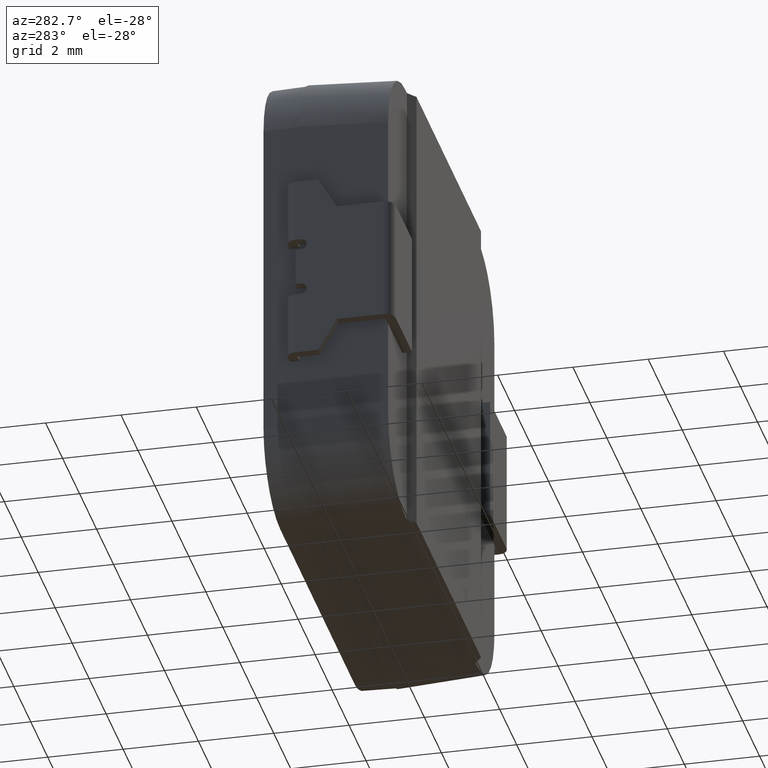
[diagram: clean part render]
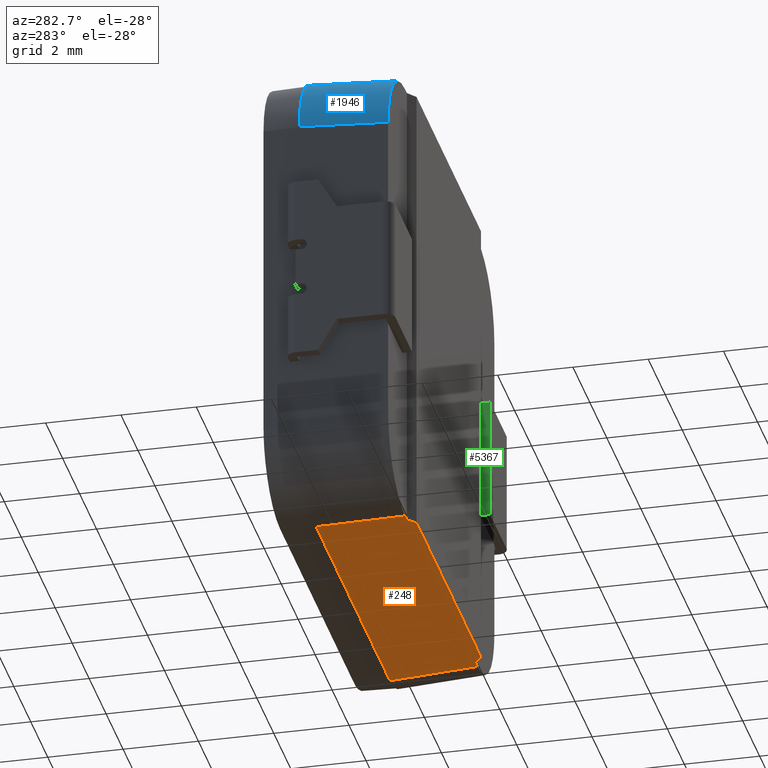
[diagram: same view with three faces highlighted in distinct colors, each labeled with its STEP entity id]
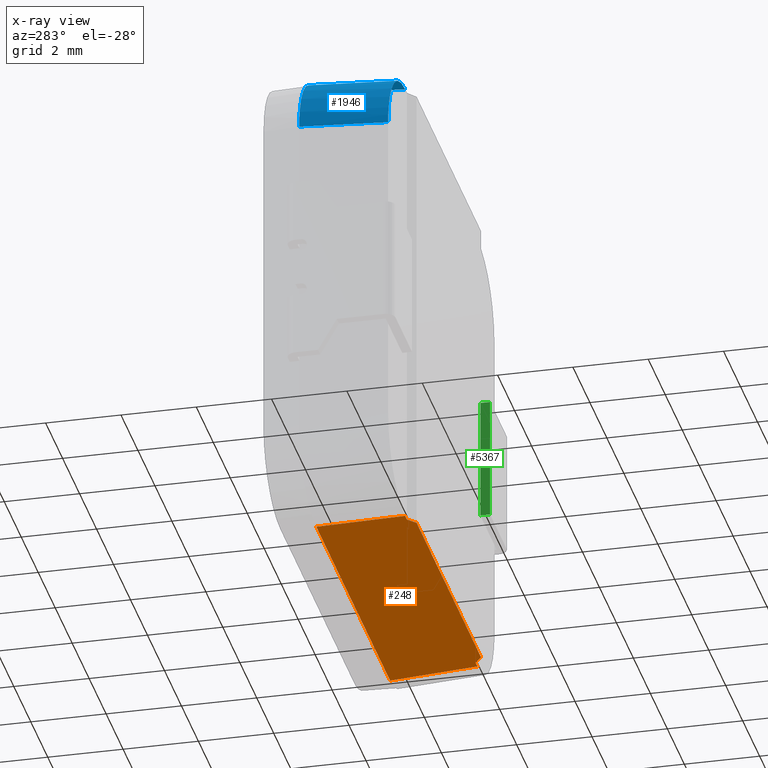
[diagram: x-ray of the same camera — body ghosted, the three highlighted faces saturated]
A machine part, auxiliary view with three faces highlighted in distinct colors.
The next image is the same camera in x-ray (body ghosted, the three faces saturated) — at least one of them is partly hidden behind the body in this view.
Their STEP definitions:

[orange] entity #248 — the highlighted planar face has unit normal (-0, -0.0401, -0.9992).
#28 = VECTOR ( 'NONE', #2300, 1000.000000000000000 ) ;
#121 = CARTESIAN_POINT ( 'NONE',  ( 3.800000000000000711, 9.307315673519885459E-16, -6.247983061623334500 ) ) ;
#126 = VECTOR ( 'NONE', #5061, 1000.000000000000000 ) ;
#248 = ADVANCED_FACE ( 'NONE', ( #2731 ), #3258, .T. ) ;
#269 = EDGE_CURVE ( 'NONE', #5351, #5845, #4841, .T. ) ;
#498 = LINE ( 'NONE', #3065, #4944 ) ;
#686 = EDGE_CURVE ( 'NONE', #5300, #5351, #498, .T. ) ;
#696 = VECTOR ( 'NONE', #1530, 1000.000000000000227 ) ;
#730 = LINE ( 'NONE', #3482, #4861 ) ;
#774 = CARTESIAN_POINT ( 'NONE',  ( -6.350000000000000533, 0.2000000000000000944, -6.256015891416768504 ) ) ;
#831 = DIRECTION ( 'NONE',  ( 0.0000000000000000000, 0.9991943951144459657, -0.04013179253255981516 ) ) ;
#992 = CARTESIAN_POINT ( 'NONE',  ( -1.144888323976440470, -3.955910659181152145, -6.089097276607078335 ) ) ;
#1013 = DIRECTION ( 'NONE',  ( -1.000000000000000000, -3.888986053480611330E-16, 2.888045808847591685E-16 ) ) ;
#1072 = EDGE_CURVE ( 'NONE', #2872, #6143, #1643, .T. ) ;
#1143 = CARTESIAN_POINT ( 'NONE',  ( -4.351611209771109046, 2.540000000000000036, -6.349999999999998757 ) ) ;
#1460 = EDGE_CURVE ( 'NONE', #4351, #5300, #2756, .T. ) ;
#1530 = DIRECTION ( 'NONE',  ( -0.7806231370511286238, -0.6244985096409028102, 0.02508245117100675603 ) ) ;
#1627 = DIRECTION ( 'NONE',  ( -1.000000000000000000, -0.0000000000000000000, 2.731847993664264205E-16 ) ) ;
#1643 = LINE ( 'NONE', #2667, #126 ) ;
#1699 = VERTEX_POINT ( 'NONE', #6102 ) ;
#1841 = EDGE_CURVE ( 'NONE', #2872, #1699, #3788, .T. ) ;
#1933 = ORIENTED_EDGE ( 'NONE', *, *, #4963, .T. ) ;
#1937 = EDGE_CURVE ( 'NONE', #1699, #2364, #4343, .T. ) ;
#1944 = EDGE_LOOP ( 'NONE', ( #2868, #4597, #6004, #3887, #5430, #5160, #2140, #1933 ) ) ;
#1960 = EDGE_CURVE ( 'NONE', #2364, #4351, #5810, .T. ) ;
#2140 = ORIENTED_EDGE ( 'NONE', *, *, #269, .T. ) ;
#2300 = DIRECTION ( 'NONE',  ( -1.000000000000000000, 1.532024808946907635E-16, 2.670315521016287325E-16 ) ) ;
#2364 = VERTEX_POINT ( 'NONE', #4431 ) ;
#2667 = CARTESIAN_POINT ( 'NONE',  ( -6.350000000000000533, 2.540000000000000036, -6.349999999999997868 ) ) ;
#2731 = FACE_OUTER_BOUND ( 'NONE', #1944, .T. ) ;
#2756 = LINE ( 'NONE', #4507, #5695 ) ;
#2868 = ORIENTED_EDGE ( 'NONE', *, *, #1072, .F. ) ;
#2872 = VERTEX_POINT ( 'NONE', #4154 ) ;
#2920 = VECTOR ( 'NONE', #1013, 1000.000000000000000 ) ;
#3011 = CARTESIAN_POINT ( 'NONE',  ( -4.049999999999998934, 0.1999999999999992339, -6.256015891416769392 ) ) ;
#3065 = CARTESIAN_POINT ( 'NONE',  ( -6.594142198687785950, 2.235313758950226326, -6.337762536426221338 ) ) ;
#3209 = DIRECTION ( 'NONE',  ( -2.729647203573977622E-16, -0.04013179253255982210, -0.9991943951144460767 ) ) ;
#3258 = PLANE ( 'NONE',  #4499 ) ;
#3274 = CARTESIAN_POINT ( 'NONE',  ( -4.257627101187881458, 0.1999999999999997613, -6.256015891416769392 ) ) ;
#3337 = CARTESIAN_POINT ( 'NONE',  ( 4.334403328898673635, 2.111561172963322353, -6.332792119127571340 ) ) ;
#3482 = CARTESIAN_POINT ( 'NONE',  ( -4.354824561066068078, 2.620005462024930232, -6.353213351294956901 ) ) ;
#3757 = DIRECTION ( 'NONE',  ( -0.04009951417164845516, -0.9983907340948209308, 0.04009951417164848292 ) ) ;
#3788 = LINE ( 'NONE', #3337, #4742 ) ;
#3828 = CARTESIAN_POINT ( 'NONE',  ( -3.799999999999999822, 0.0000000000000000000, -6.247983061623331835 ) ) ;
#3887 = ORIENTED_EDGE ( 'NONE', *, *, #1960, .T. ) ;
#4154 = CARTESIAN_POINT ( 'NONE',  ( 4.351611209771102828, 2.540000000000000036, -6.350000000000000533 ) ) ;
#4343 = LINE ( 'NONE', #5356, #2920 ) ;
#4351 = VERTEX_POINT ( 'NONE', #121 ) ;
#4431 = CARTESIAN_POINT ( 'NONE',  ( 4.050000000000000711, 0.2000000000000006495, -6.256015891416772057 ) ) ;
#4499 = AXIS2_PLACEMENT_3D ( 'NONE', #6192, #3209, #831 ) ;
#4507 = CARTESIAN_POINT ( 'NONE',  ( -6.350000000000000533, 0.0000000000000000000, -6.247983061623330947 ) ) ;
#4597 = ORIENTED_EDGE ( 'NONE', *, *, #1841, .T. ) ;
#4742 = VECTOR ( 'NONE', #3757, 1000.000000000000114 ) ;
#4841 = LINE ( 'NONE', #774, #28 ) ;
#4861 = VECTOR ( 'NONE', #6006, 1000.000000000000114 ) ;
#4944 = VECTOR ( 'NONE', #4955, 1000.000000000000114 ) ;
#4955 = DIRECTION ( 'NONE',  ( -0.7806231370511289569, 0.6244985096409025882, -0.02508245117100632235 ) ) ;
#4963 = EDGE_CURVE ( 'NONE', #5845, #6143, #730, .T. ) ;
#5061 = DIRECTION ( 'NONE',  ( -1.000000000000000000, 0.0000000000000000000, 2.731847993664264205E-16 ) ) ;
#5160 = ORIENTED_EDGE ( 'NONE', *, *, #686, .T. ) ;
#5300 = VERTEX_POINT ( 'NONE', #3828 ) ;
#5351 = VERTEX_POINT ( 'NONE', #3011 ) ;
#5356 = CARTESIAN_POINT ( 'NONE',  ( -6.349999999999999645, 0.1999999999999966249, -6.256015891416768504 ) ) ;
#5430 = ORIENTED_EDGE ( 'NONE', *, *, #1460, .T. ) ;
#5695 = VECTOR ( 'NONE', #1627, 1000.000000000000000 ) ;
#5810 = LINE ( 'NONE', #992, #696 ) ;
#5845 = VERTEX_POINT ( 'NONE', #3274 ) ;
#6004 = ORIENTED_EDGE ( 'NONE', *, *, #1937, .T. ) ;
#6006 = DIRECTION ( 'NONE',  ( -0.04009951417164847598, 0.9983907340948209308, -0.04009951417164846210 ) ) ;
#6102 = CARTESIAN_POINT ( 'NONE',  ( 4.257627101187869023, 0.2000000000000007327, -6.256015891416772057 ) ) ;
#6143 = VERTEX_POINT ( 'NONE', #1143 ) ;
#6192 = CARTESIAN_POINT ( 'NONE',  ( -6.350000000000000533, 2.540000000000000036, -6.349999999999997868 ) ) ;

[blue] entity #1946 — the highlighted cylindrical surface (partial cylindrical patch) has radius 2 mm, axis along (0.0401, -0.9984, -0.0401).
#218 = CARTESIAN_POINT ( 'NONE',  ( -6.350000000000000533, 2.540000000000000036, 4.351611209771104605 ) ) ;
#389 = VECTOR ( 'NONE', #2238, 1000.000000000000114 ) ;
#427 = CARTESIAN_POINT ( 'NONE',  ( -6.256015891416772057, 0.1999999999999999556, 5.428646283308216525 ) ) ;
#566 = CARTESIAN_POINT ( 'NONE',  ( -4.354824561066067190, 2.700269047090050112, 4.354824561066063637 ) ) ;
#671 = CARTESIAN_POINT ( 'NONE',  ( -6.350000000000000533, 2.540000000000000036, 5.522630391891446777 ) ) ;
#833 = CYLINDRICAL_SURFACE ( 'NONE', #1943, 2.000000000000000000 ) ;
#1173 = EDGE_CURVE ( 'NONE', #3013, #1629, #4314, .T. ) ;
#1359 = CARTESIAN_POINT ( 'NONE',  ( -4.257627101187879681, 0.1999999999999997613, 6.256015891416768504 ) ) ;
#1446 = ORIENTED_EDGE ( 'NONE', *, *, #3804, .F. ) ;
#1551 =( BOUNDED_CURVE ( )  B_SPLINE_CURVE ( 3, ( #4768, #3322, #427, #3798 ),
 .UNSPECIFIED., .F., .T. ) 
 B_SPLINE_CURVE_WITH_KNOTS ( ( 4, 4 ),
 ( 2.356999770926418769, 3.926185536253164798 ),
 .UNSPECIFIED. ) 
 CURVE ( )  GEOMETRIC_REPRESENTATION_ITEM ( )  RATIONAL_B_SPLINE_CURVE ( ( 1.000000000000000000, 0.8051173142143849271, 0.8051173142143849271, 1.000000000000000000 ) ) 
 REPRESENTATION_ITEM ( '' )  );
#1587 = CARTESIAN_POINT ( 'NONE',  ( -6.332792119127571340, 2.111561172963322353, 4.334403328898676300 ) ) ;
#1629 = VERTEX_POINT ( 'NONE', #2075 ) ;
#1713 = EDGE_CURVE ( 'NONE', #1629, #5993, #5058, .T. ) ;
#1943 = AXIS2_PLACEMENT_3D ( 'NONE', #566, #3469, #3939 ) ;
#1946 = ADVANCED_FACE ( 'NONE', ( #2857 ), #833, .T. ) ;
#2075 = CARTESIAN_POINT ( 'NONE',  ( -4.351611209771108157, 2.540000000000000036, 6.349999999999997868 ) ) ;
#2136 = VERTEX_POINT ( 'NONE', #6198 ) ;
#2238 = DIRECTION ( 'NONE',  ( 0.04009951417164847598, -0.9983907340948209308, -0.04009951417164847598 ) ) ;
#2606 = EDGE_CURVE ( 'NONE', #5993, #2136, #1551, .T. ) ;
#2790 = VECTOR ( 'NONE', #4392, 1000.000000000000114 ) ;
#2857 = FACE_OUTER_BOUND ( 'NONE', #4335, .T. ) ;
#2867 = CARTESIAN_POINT ( 'NONE',  ( -6.350000000000000533, 2.540000000000000036, 4.351611209771104605 ) ) ;
#3013 = VERTEX_POINT ( 'NONE', #2867 ) ;
#3322 = CARTESIAN_POINT ( 'NONE',  ( -5.428646283308221854, 0.1999999999999998446, 6.256015891416767616 ) ) ;
#3469 = DIRECTION ( 'NONE',  ( 0.04009951417164847598, -0.9983907340948210418, -0.04009951417164848292 ) ) ;
#3798 = CARTESIAN_POINT ( 'NONE',  ( -6.256015891416771169, 0.2000000000000000944, 4.257627101187874352 ) ) ;
#3804 = EDGE_CURVE ( 'NONE', #2136, #3013, #4227, .T. ) ;
#3939 = DIRECTION ( 'NONE',  ( 0.0000000000000000000, 0.04013179253255987067, -0.9991943951144460767 ) ) ;
#4031 = ORIENTED_EDGE ( 'NONE', *, *, #1713, .F. ) ;
#4227 = LINE ( 'NONE', #1587, #2790 ) ;
#4314 =( BOUNDED_CURVE ( )  B_SPLINE_CURVE ( 3, ( #218, #671, #5979, #5939 ),
 .UNSPECIFIED., .F., .F. ) 
 B_SPLINE_CURVE_WITH_KNOTS ( ( 4, 4 ),
 ( 2.356999770926420101, 3.926185536253165687 ),
 .UNSPECIFIED. ) 
 CURVE ( )  GEOMETRIC_REPRESENTATION_ITEM ( )  RATIONAL_B_SPLINE_CURVE ( ( 1.000000000000000000, 0.8051173142143849271, 0.8051173142143849271, 1.000000000000000000 ) ) 
 REPRESENTATION_ITEM ( '' )  );
#4335 = EDGE_LOOP ( 'NONE', ( #5126, #1446, #5517, #4031 ) ) ;
#4392 = DIRECTION ( 'NONE',  ( -0.04009951417164847598, 0.9983907340948209308, 0.04009951417164847598 ) ) ;
#4768 = CARTESIAN_POINT ( 'NONE',  ( -4.257627101187879681, 0.1999999999999997613, 6.256015891416768504 ) ) ;
#5058 = LINE ( 'NONE', #5130, #389 ) ;
#5126 = ORIENTED_EDGE ( 'NONE', *, *, #1173, .F. ) ;
#5130 = CARTESIAN_POINT ( 'NONE',  ( -4.354824561066067190, 2.620005462024930232, 6.353213351294956013 ) ) ;
#5517 = ORIENTED_EDGE ( 'NONE', *, *, #2606, .F. ) ;
#5939 = CARTESIAN_POINT ( 'NONE',  ( -4.351611209771108157, 2.540000000000000036, 6.349999999999997868 ) ) ;
#5979 = CARTESIAN_POINT ( 'NONE',  ( -5.522630391891451218, 2.540000000000000036, 6.349999999999996092 ) ) ;
#5993 = VERTEX_POINT ( 'NONE', #1359 ) ;
#6198 = CARTESIAN_POINT ( 'NONE',  ( -6.256015891416771169, 0.2000000000000000944, 4.257627101187874352 ) ) ;

[green] entity #5367 — the highlighted planar face has unit normal (-1, 0, 0).
#172 = LINE ( 'NONE', #5858, #5442 ) ;
#400 = VECTOR ( 'NONE', #1782, 1000.000000000000000 ) ;
#558 = VERTEX_POINT ( 'NONE', #4525 ) ;
#570 = DIRECTION ( 'NONE',  ( 0.0000000000000000000, 0.0000000000000000000, 1.000000000000000000 ) ) ;
#583 = VERTEX_POINT ( 'NONE', #2131 ) ;
#593 = CARTESIAN_POINT ( 'NONE',  ( 4.600000000000001421, -0.05999999999999972022, 2.500000000000000000 ) ) ;
#630 = CARTESIAN_POINT ( 'NONE',  ( 4.600000000000001421, -0.05999999999999972022, 2.500000000000000000 ) ) ;
#976 = LINE ( 'NONE', #5851, #5986 ) ;
#1370 = LINE ( 'NONE', #630, #5205 ) ;
#1524 = CARTESIAN_POINT ( 'NONE',  ( 4.600000000000001421, -0.05999999999999895695, -1.650000000000001021 ) ) ;
#1782 = DIRECTION ( 'NONE',  ( 0.0000000000000000000, -1.000000000000000000, -1.445602896647339903E-16 ) ) ;
#1831 = AXIS2_PLACEMENT_3D ( 'NONE', #593, #5877, #570 ) ;
#1950 = ORIENTED_EDGE ( 'NONE', *, *, #6181, .F. ) ;
#2131 = CARTESIAN_POINT ( 'NONE',  ( 4.600000000000001421, -0.05999999999999936634, 1.649999999999998801 ) ) ;
#2503 = LINE ( 'NONE', #4191, #400 ) ;
#2633 = CARTESIAN_POINT ( 'NONE',  ( 4.600000000000001421, 0.2000000000000003164, -1.650000000000000799 ) ) ;
#3160 = EDGE_CURVE ( 'NONE', #558, #4393, #172, .T. ) ;
#3291 = ORIENTED_EDGE ( 'NONE', *, *, #3160, .T. ) ;
#3411 = ORIENTED_EDGE ( 'NONE', *, *, #3440, .T. ) ;
#3440 = EDGE_CURVE ( 'NONE', #583, #558, #976, .T. ) ;
#3452 = VERTEX_POINT ( 'NONE', #1524 ) ;
#3731 = EDGE_LOOP ( 'NONE', ( #1950, #3411, #3291, #5153 ) ) ;
#4191 = CARTESIAN_POINT ( 'NONE',  ( 4.600000000000001421, -0.05999999999999912348, -1.650000000000000799 ) ) ;
#4383 = PLANE ( 'NONE',  #1831 ) ;
#4393 = VERTEX_POINT ( 'NONE', #2633 ) ;
#4525 = CARTESIAN_POINT ( 'NONE',  ( 4.600000000000001421, 0.2000000000000003164, 1.649999999999998801 ) ) ;
#4838 = FACE_OUTER_BOUND ( 'NONE', #3731, .T. ) ;
#4845 = DIRECTION ( 'NONE',  ( 0.0000000000000000000, 1.000000000000000000, 1.445602896647339903E-16 ) ) ;
#4959 = DIRECTION ( 'NONE',  ( -0.0000000000000000000, -0.0000000000000000000, -1.000000000000000000 ) ) ;
#5153 = ORIENTED_EDGE ( 'NONE', *, *, #5831, .T. ) ;
#5205 = VECTOR ( 'NONE', #4959, 1000.000000000000000 ) ;
#5367 = ADVANCED_FACE ( 'NONE', ( #4838 ), #4383, .T. ) ;
#5442 = VECTOR ( 'NONE', #5902, 1000.000000000000000 ) ;
#5831 = EDGE_CURVE ( 'NONE', #4393, #3452, #2503, .T. ) ;
#5851 = CARTESIAN_POINT ( 'NONE',  ( 4.600000000000001421, -0.05999999999999960226, 1.649999999999998801 ) ) ;
#5858 = CARTESIAN_POINT ( 'NONE',  ( 4.600000000000001421, 0.2000000000000003164, 2.500000000000000000 ) ) ;
#5877 = DIRECTION ( 'NONE',  ( -1.000000000000000000, 0.0000000000000000000, 0.0000000000000000000 ) ) ;
#5902 = DIRECTION ( 'NONE',  ( -0.0000000000000000000, -0.0000000000000000000, -1.000000000000000000 ) ) ;
#5986 = VECTOR ( 'NONE', #4845, 1000.000000000000000 ) ;
#6181 = EDGE_CURVE ( 'NONE', #583, #3452, #1370, .T. ) ;